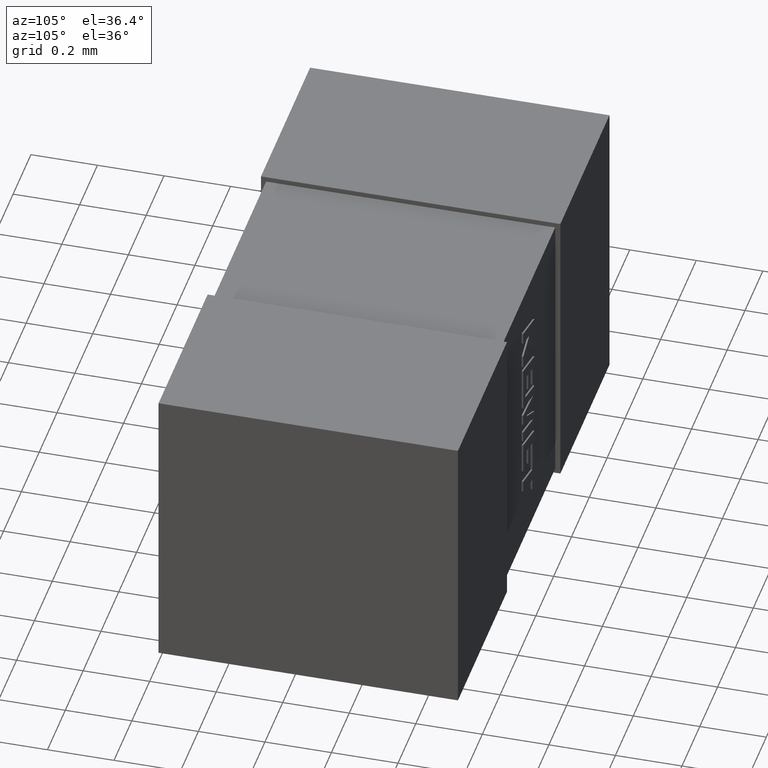
[diagram: clean part render]
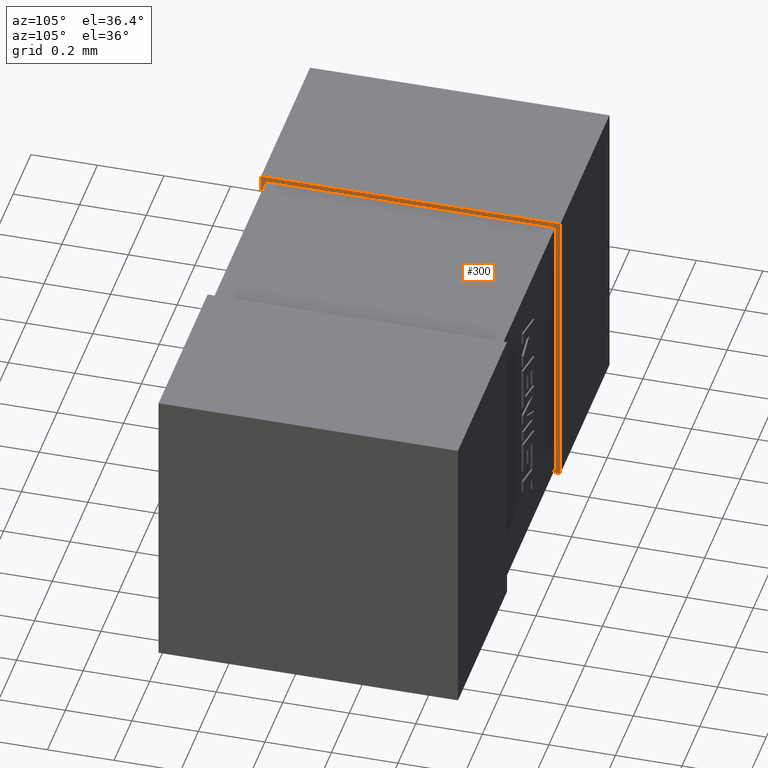
[diagram: same view with one face highlighted and labeled with its STEP entity id]
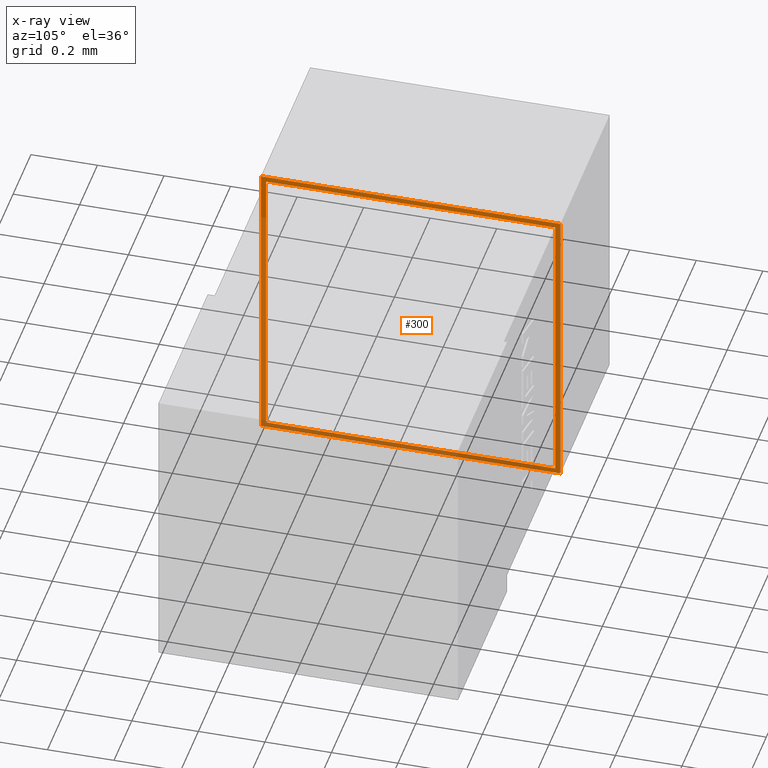
[diagram: x-ray of the same camera — body ghosted, the highlighted face saturated]
A machine part, auxiliary view. The second image highlights one B-rep face of the part: STEP entity #300.
The next image is the same camera in x-ray: the body ghosted, the highlighted face saturated — about 45% of this face is hidden behind the body in this view.
In plain terms, the highlighted planar face has unit normal (-1, -0, 0).
Its self-contained STEP definition (entity closure, byte-faithful):
#26 = EDGE_CURVE ( 'NONE', #2106, #996, #1551, .T. ) ;
#60 = CARTESIAN_POINT ( 'NONE',  ( 0.5510000000000064800, 3.670258186266575500E-015, -0.9000000000000003600 ) ) ;
#62 = DIRECTION ( 'NONE',  ( 0.0000000000000000000, -2.409338161078898700E-016, 1.000000000000000000 ) ) ;
#109 = CARTESIAN_POINT ( 'NONE',  ( 0.5510000000000064800, 3.670258186266575500E-015, -0.9000000000000003600 ) ) ;
#170 = VERTEX_POINT ( 'NONE', #1509 ) ;
#214 = EDGE_CURVE ( 'NONE', #957, #739, #1215, .T. ) ;
#223 = CARTESIAN_POINT ( 'NONE',  ( 0.5510000000000064800, 0.8844831000000000800, -0.8844830999999997400 ) ) ;
#229 = CARTESIAN_POINT ( 'NONE',  ( 0.5510000000000064800, 0.9000000000000001300, -0.9000000000000002400 ) ) ;
#247 = VECTOR ( 'NONE', #2256, 1000.000000000000000 ) ;
#300 = ADVANCED_FACE ( 'NONE', ( #2330, #642 ), #752, .F. ) ;
#303 = VECTOR ( 'NONE', #723, 1000.000000000000000 ) ;
#314 = DIRECTION ( 'NONE',  ( -0.0000000000000000000, 1.000000000000000000, 2.409338161078908500E-016 ) ) ;
#332 = ORIENTED_EDGE ( 'NONE', *, *, #510, .T. ) ;
#376 = ORIENTED_EDGE ( 'NONE', *, *, #26, .F. ) ;
#392 = DIRECTION ( 'NONE',  ( -0.0000000000000000000, -0.0000000000000000000, 1.000000000000000000 ) ) ;
#430 = VECTOR ( 'NONE', #1575, 1000.000000000000000 ) ;
#510 = EDGE_CURVE ( 'NONE', #1643, #1554, #2031, .T. ) ;
#576 = DIRECTION ( 'NONE',  ( 0.0000000000000000000, 0.0000000000000000000, 1.000000000000000000 ) ) ;
#581 = CARTESIAN_POINT ( 'NONE',  ( 0.5510000000000064800, 0.8999999999999999100, -1.716497918504038100E-016 ) ) ;
#589 = EDGE_LOOP ( 'NONE', ( #1914, #1858, #2271, #376 ) ) ;
#642 = FACE_BOUND ( 'NONE', #589, .T. ) ;
#679 = VECTOR ( 'NONE', #392, 1000.000000000000000 ) ;
#699 = EDGE_CURVE ( 'NONE', #739, #1643, #1154, .T. ) ;
#705 = VECTOR ( 'NONE', #314, 1000.000000000000000 ) ;
#723 = DIRECTION ( 'NONE',  ( 0.0000000000000000000, 0.0000000000000000000, -1.000000000000000000 ) ) ;
#726 = CARTESIAN_POINT ( 'NONE',  ( 0.5510000000000064800, 0.9000000000000001300, -0.9000000000000002400 ) ) ;
#739 = VERTEX_POINT ( 'NONE', #1780 ) ;
#752 = PLANE ( 'NONE',  #2262 ) ;
#764 = CARTESIAN_POINT ( 'NONE',  ( 0.5510000000000064800, 0.8844831000000000800, -0.01551689999999990600 ) ) ;
#802 = ORIENTED_EDGE ( 'NONE', *, *, #1095, .T. ) ;
#806 = ORIENTED_EDGE ( 'NONE', *, *, #699, .T. ) ;
#844 = LINE ( 'NONE', #1688, #2318 ) ;
#915 = CARTESIAN_POINT ( 'NONE',  ( 0.5510000000000064800, 0.01551690000000001400, -0.01551690000000001400 ) ) ;
#916 = VECTOR ( 'NONE', #62, 1000.000000000000000 ) ;
#957 = VERTEX_POINT ( 'NONE', #109 ) ;
#996 = VERTEX_POINT ( 'NONE', #1868 ) ;
#1095 = EDGE_CURVE ( 'NONE', #1554, #957, #2058, .T. ) ;
#1137 = EDGE_LOOP ( 'NONE', ( #1797, #806, #332, #802 ) ) ;
#1154 = LINE ( 'NONE', #229, #916 ) ;
#1215 = LINE ( 'NONE', #726, #705 ) ;
#1425 = VECTOR ( 'NONE', #1803, 1000.000000000000000 ) ;
#1459 = LINE ( 'NONE', #223, #430 ) ;
#1509 = CARTESIAN_POINT ( 'NONE',  ( 0.5510000000000064800, 0.8844831000000000800, -0.8844830999999997400 ) ) ;
#1550 = CARTESIAN_POINT ( 'NONE',  ( 0.5510000000000064800, 3.842978912456958700E-015, 0.0000000000000000000 ) ) ;
#1551 = LINE ( 'NONE', #2459, #303 ) ;
#1554 = VERTEX_POINT ( 'NONE', #1550 ) ;
#1575 = DIRECTION ( 'NONE',  ( -0.0000000000000000000, 1.000000000000000000, 4.990767983774302600E-016 ) ) ;
#1643 = VERTEX_POINT ( 'NONE', #581 ) ;
#1688 = CARTESIAN_POINT ( 'NONE',  ( 0.5510000000000064800, 0.8844831000000000800, -0.01551689999999990600 ) ) ;
#1774 = EDGE_CURVE ( 'NONE', #2269, #2106, #844, .T. ) ;
#1780 = CARTESIAN_POINT ( 'NONE',  ( 0.5510000000000064800, 0.9000000000000001300, -0.9000000000000002400 ) ) ;
#1797 = ORIENTED_EDGE ( 'NONE', *, *, #214, .T. ) ;
#1803 = DIRECTION ( 'NONE',  ( -0.0000000000000000000, -1.919119179893144200E-016, -1.000000000000000000 ) ) ;
#1858 = ORIENTED_EDGE ( 'NONE', *, *, #2040, .F. ) ;
#1868 = CARTESIAN_POINT ( 'NONE',  ( 0.5510000000000064800, 0.01551690000000001400, -0.8844831000000001900 ) ) ;
#1876 = LINE ( 'NONE', #2375, #679 ) ;
#1914 = ORIENTED_EDGE ( 'NONE', *, *, #1774, .F. ) ;
#1925 = CARTESIAN_POINT ( 'NONE',  ( 0.5510000000000064800, 0.0000000000000000000, 0.0000000000000000000 ) ) ;
#2031 = LINE ( 'NONE', #2072, #247 ) ;
#2040 = EDGE_CURVE ( 'NONE', #170, #2269, #1876, .T. ) ;
#2058 = LINE ( 'NONE', #60, #1425 ) ;
#2072 = CARTESIAN_POINT ( 'NONE',  ( 0.5510000000000064800, 0.8999999999999999100, -1.716497918504038100E-016 ) ) ;
#2104 = DIRECTION ( 'NONE',  ( -1.000000000000000000, -0.0000000000000000000, 0.0000000000000000000 ) ) ;
#2106 = VERTEX_POINT ( 'NONE', #915 ) ;
#2256 = DIRECTION ( 'NONE',  ( 0.0000000000000000000, -1.000000000000000000, 1.907219909448939800E-016 ) ) ;
#2262 = AXIS2_PLACEMENT_3D ( 'NONE', #1925, #2104, #576 ) ;
#2269 = VERTEX_POINT ( 'NONE', #764 ) ;
#2271 = ORIENTED_EDGE ( 'NONE', *, *, #2447, .F. ) ;
#2280 = DIRECTION ( 'NONE',  ( 0.0000000000000000000, -1.000000000000000000, -1.247691995943575700E-016 ) ) ;
#2318 = VECTOR ( 'NONE', #2280, 1000.000000000000000 ) ;
#2330 = FACE_OUTER_BOUND ( 'NONE', #1137, .T. ) ;
#2375 = CARTESIAN_POINT ( 'NONE',  ( 0.5510000000000064800, 0.8844831000000000800, -0.01551689999999990600 ) ) ;
#2447 = EDGE_CURVE ( 'NONE', #996, #170, #1459, .T. ) ;
#2459 = CARTESIAN_POINT ( 'NONE',  ( 0.5510000000000064800, 0.01551690000000001400, -0.01551690000000001400 ) ) ;